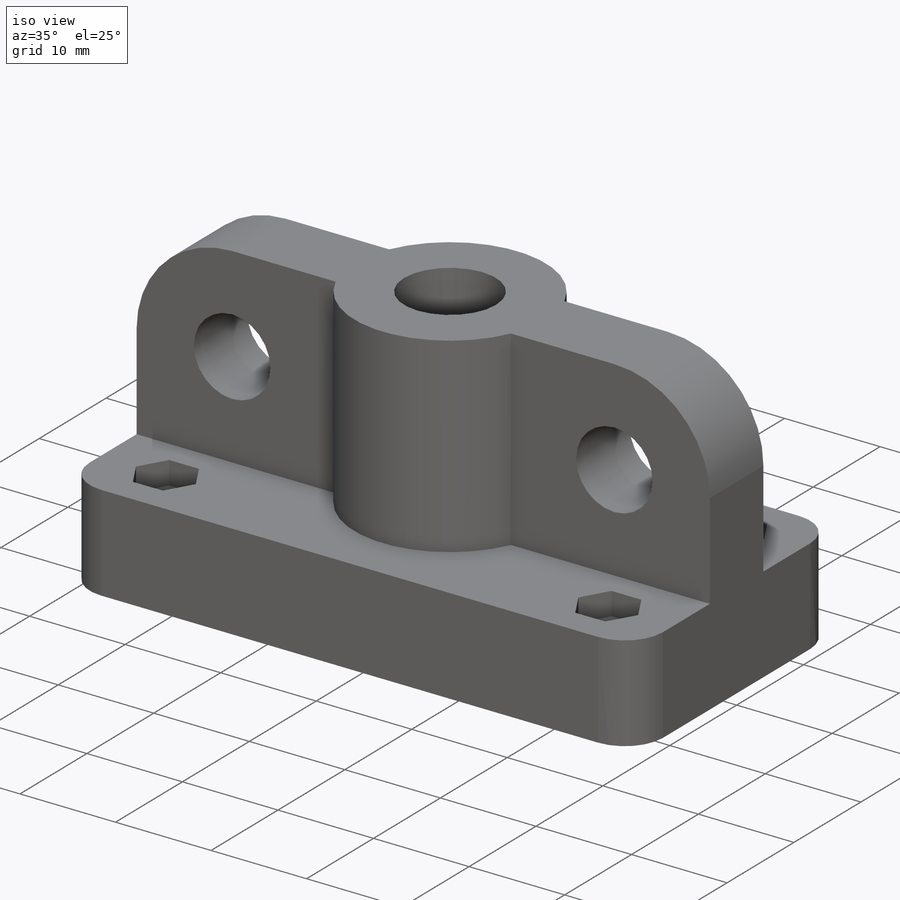
[diagram: iso view]
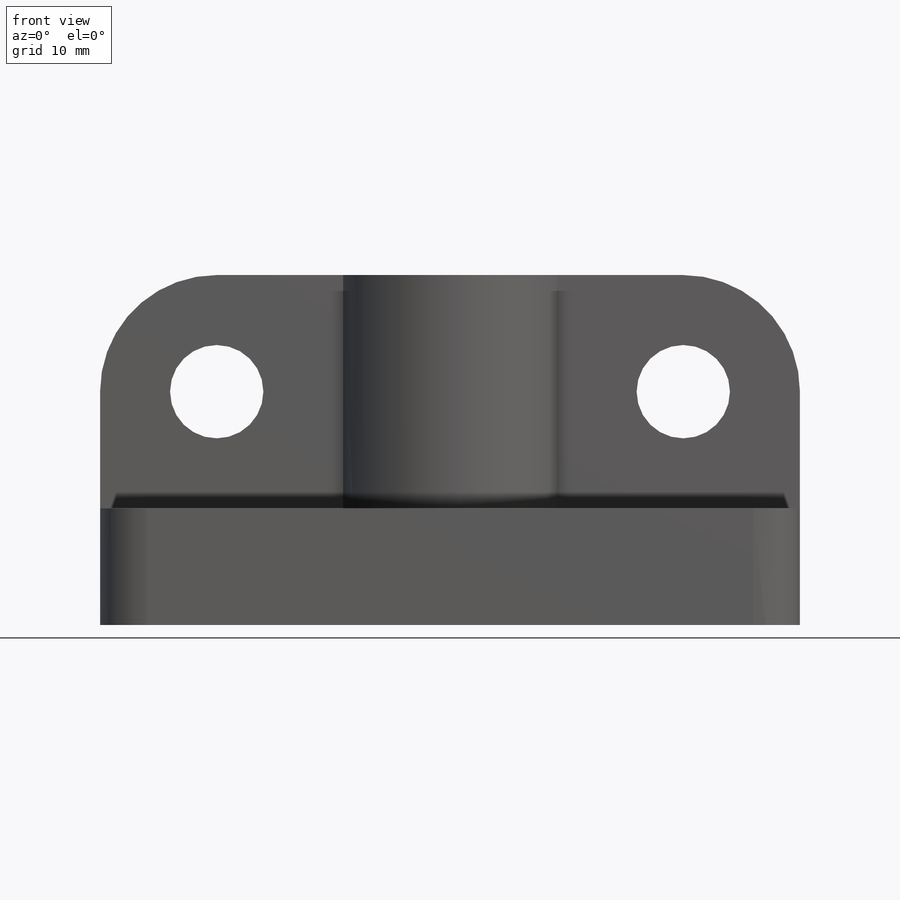
[diagram: front view]
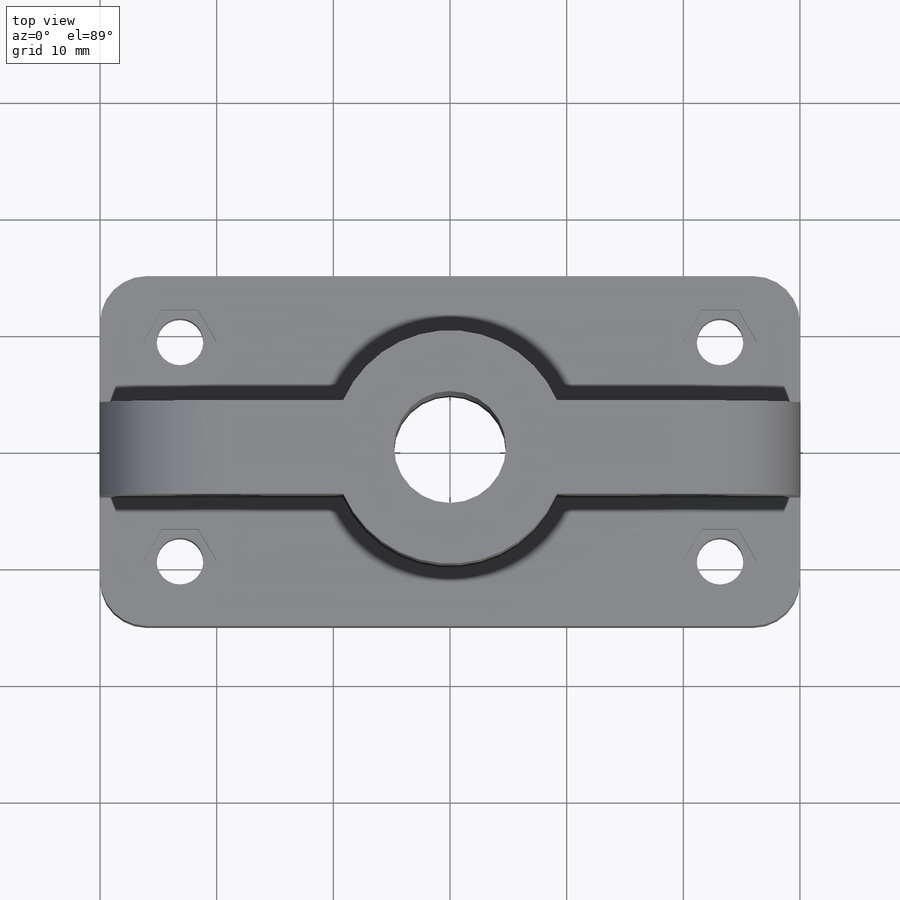
[diagram: top view]
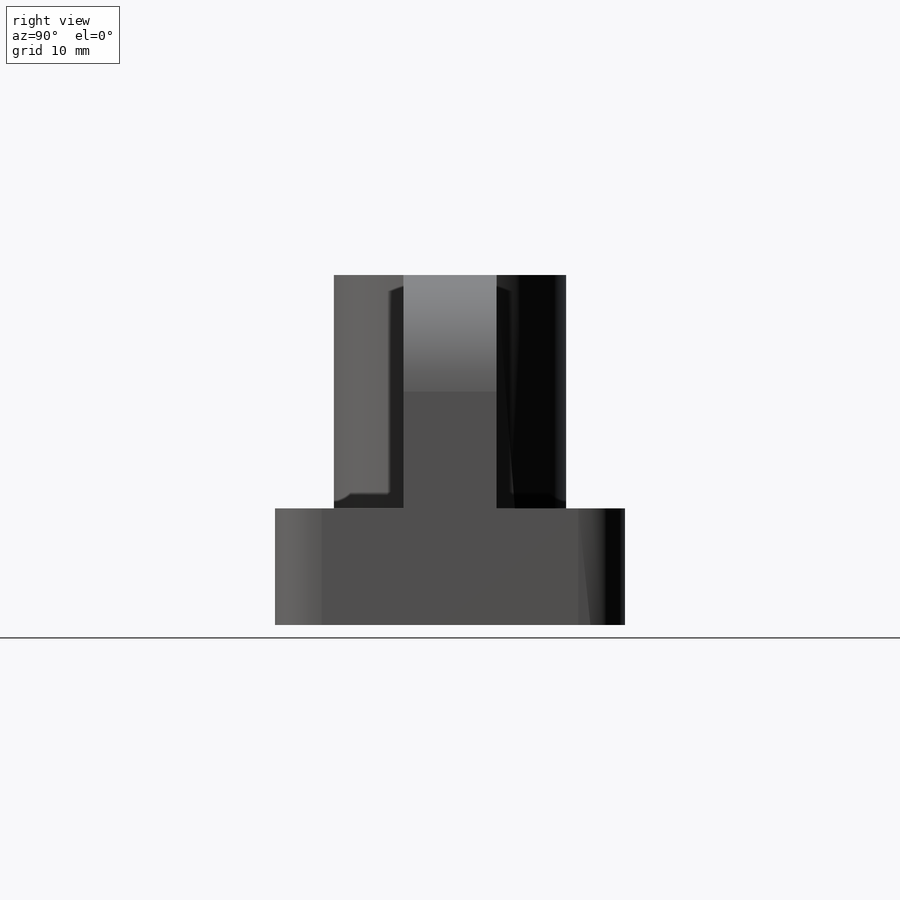
[diagram: right view]
SOLIDWORKS PART (.sldprt)
format: sldprt  version: not decoded by parser v0  size: 760,320 bytes
history: native  units: mm
features: sketch x6, extrude x2, fillet x2, cut_extrude x2, material x1, hole x1 (+11 scaffold rows collapsed)
feature tree (25):
  scaffold x11  (default folders/planes/origin — collapsed)
  material  "Material <not specified>"
  sketch  "Sketch2"  dims[D1=60.0mm D2=30.0mm]
  extrude  "Base"  Depth=10mm
  sketch  "Sketch3"  dims[D1=20.0mm D2=8.0mm D3=60.0mm]
  extrude  "Structure"  Depth=20mm
  sketch  "Sketch4"  dims[D3=8.0mm D1=10.0mm D2=10.0mm]
  sketch  "Sketch5"  dims[D1=9.6mm]
  hole  "Pen Hole"  [1 undecoded]
  fillet  "Upper Corner Dec"  Radius=10mm
  fillet  "Base Corner Dec"  Radius=4mm
  sketch  "Sketch6"  dims[D1=4.0mm D2=23.15mm D3=9.4mm]
  cut_extrude  "Bolt Holes"  [1 undecoded]
  sketch  "Sketch7"  dims[D1=~4.401306mm]
  cut_extrude  "Cap Nut Holes"  Depth=2.4mm
decode coverage: 11 of 13 modeling features carry decoded parameters
note: ~ marks probable driven/reference dimensions
note: 2 parameter values undecoded
note: suppression state not decoded; provenance and decode notes live in map.json
